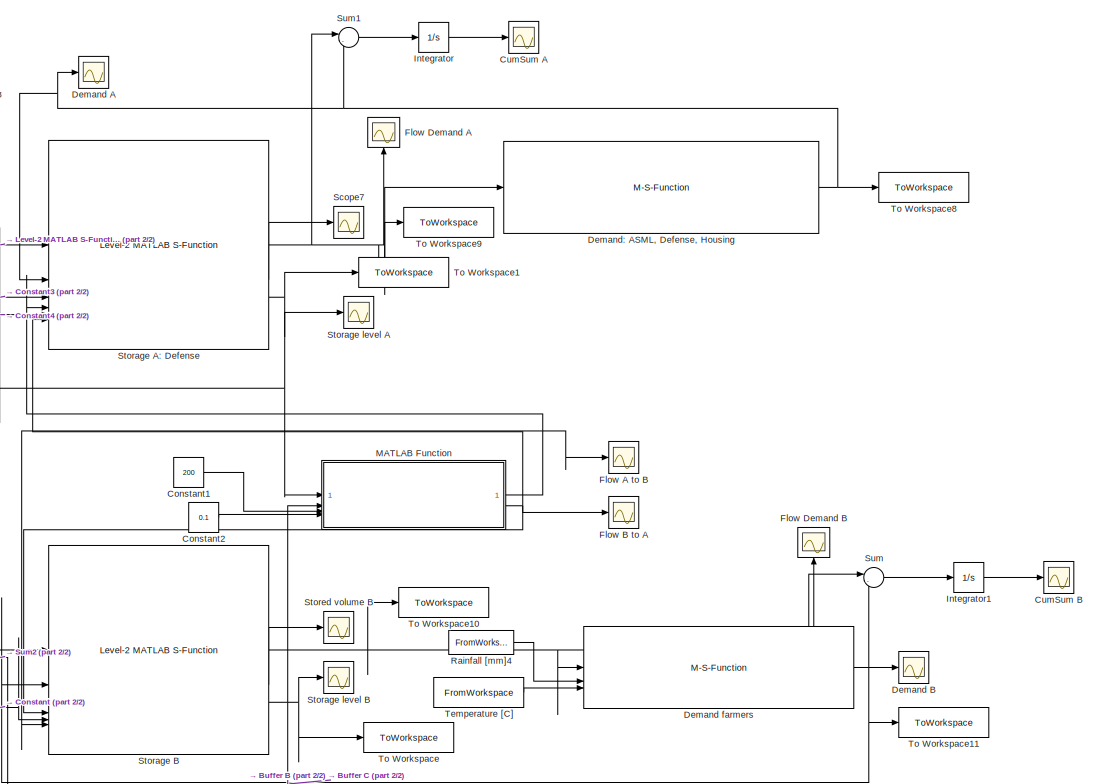
[diagram: root canvas - part 1/2, middle right region]
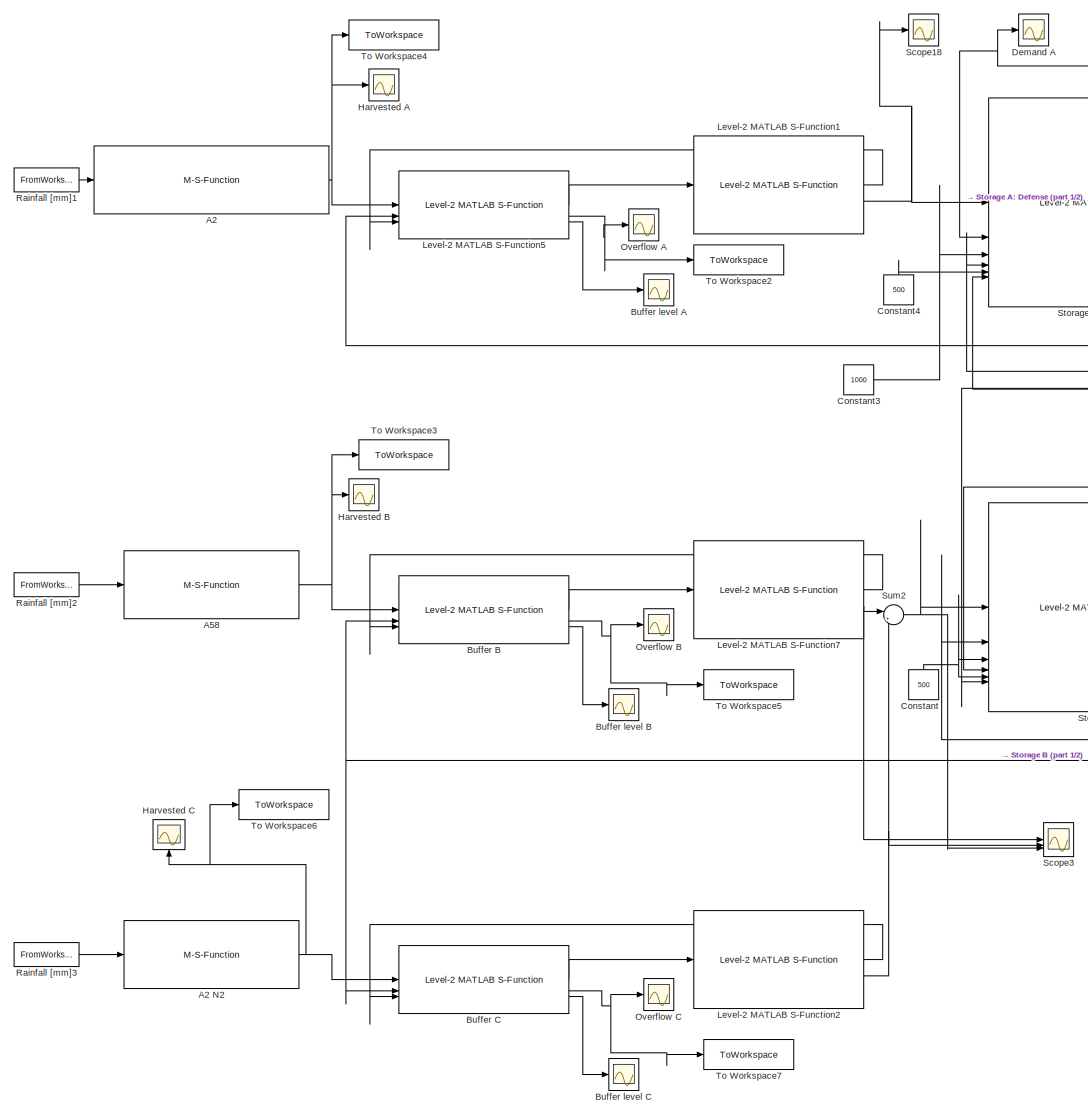
[diagram: root canvas - part 2/2, left side, full height]
MODEL slx_b76497cbbe05
KIND model
CONFIG AbsTol = auto
CONFIG EnableMultiTasking = off
CONFIG FixedStep = 0.05
CONFIG MaxStep = auto
CONFIG MinStep = auto
CONFIG RelTol = 1e-3
CONFIG SampleTimeConstraint = Unconstrained
CONFIG SolverName = ode1
CONFIG StartTime = 0.0
CONFIG StopTime = 365*24
BLOCK [M-S-Function] A2
  FunctionName = Harvester_s
  Parameters = Type_harvester, inflow_groundwater, Area
BLOCK [M-S-Function] A2 N2
  FunctionName = Harvester_s
  Parameters = Type_harvester, inflow_groundwater, Area
BLOCK [M-S-Function] A58
  FunctionName = Harvester_s
  Parameters = Type_harvester, inflow_groundwater, Area
BLOCK [Reference] Buffer B  REF=buffer_lib/Level-2 MATLAB
S-Function
  SourceBlock = buffer_lib/Level-2 MATLAB\nS-Function
BLOCK [Reference] Buffer C  REF=buffer_lib/Level-2 MATLAB
S-Function
  SourceBlock = buffer_lib/Level-2 MATLAB\nS-Function
BLOCK [Scope] Buffer level A
  Floating = off
  NumInputPorts = 1
  ScopeSpecificationString = Simulink.scopes.TimeScopeBlockCfg('CurrentConfiguration', extmgr.ConfigurationSet(extmgr.Configuration('Core','General UI',true),extmgr.Configuration('Core','Source UI',true),extmgr.Configuration('Sources','WiredSimulink',true,'DataLoggingVariableName','ScopeData2'),extmgr.Configuration('Visuals','Time Domain',true,'SerializedDisplays',{struct('MinYLimReal','-0.08','MaxYLimReal','0.72','YLabelReal...<+1458ch>
BLOCK [Scope] Buffer level B
  Floating = off
  NumInputPorts = 1
  ScopeSpecificationString = Simulink.scopes.TimeScopeBlockCfg('CurrentConfiguration', extmgr.ConfigurationSet(extmgr.Configuration('Core','General UI',true),extmgr.Configuration('Core','Source UI',true),extmgr.Configuration('Sources','WiredSimulink',true,'DataLoggingVariableName','ScopeData8'),extmgr.Configuration('Visuals','Time Domain',true,'SerializedDisplays',{struct('MinYLimReal','-0.08016','MaxYLimReal','0.72143','YLab...<+1486ch>
BLOCK [Scope] Buffer level C
  Floating = off
  NumInputPorts = 1
  ScopeSpecificationString = Simulink.scopes.TimeScopeBlockCfg('CurrentConfiguration', extmgr.ConfigurationSet(extmgr.Configuration('Core','General UI',true),extmgr.Configuration('Core','Source UI',true),extmgr.Configuration('Sources','WiredSimulink',true,'DataLoggingVariableName','ScopeData2'),extmgr.Configuration('Visuals','Time Domain',true,'SerializedDisplays',{struct('MinYLimReal','-0.09347','MaxYLimReal','0.84123','YLab...<+1486ch>
BLOCK [Constant] Constant
  NameLocation = right
  Value = 500
BLOCK [Constant] Constant1
  Value = 200
BLOCK [Constant] Constant2
  Value = 0.1
BLOCK [Constant] Constant3
  Value = 1000
BLOCK [Constant] Constant4
  NameLocation = right
  Value = 500
BLOCK [Scope] CumSum A
  Floating = off
  NumInputPorts = 1
  ScopeSpecificationString = Simulink.scopes.TimeScopeBlockCfg('CurrentConfiguration', extmgr.ConfigurationSet(extmgr.Configuration('Core','General UI',true),extmgr.Configuration('Core','Source UI',true),extmgr.Configuration('Sources','WiredSimulink',true,'DataLoggingVariableName','ScopeData1'),extmgr.Configuration('Visuals','Time Domain',true,'SerializedDisplays',{struct('MinYLimReal','-0.57078','MaxYLimReal','5.13699','YLab...<+1486ch>
BLOCK [Scope] CumSum B
  Floating = off
  NumInputPorts = 1
  ScopeSpecificationString = Simulink.scopes.TimeScopeBlockCfg('CurrentConfiguration', extmgr.ConfigurationSet(extmgr.Configuration('Core','General UI',true),extmgr.Configuration('Core','Source UI',true),extmgr.Configuration('Sources','WiredSimulink',true,'DataLoggingVariableName','ScopeData2'),extmgr.Configuration('Visuals','Time Domain',true,'SerializedDisplays',{struct('MinYLimReal','-16309.85454','MaxYLimReal','146788.690...<+1564ch>
BLOCK [Scope] Demand A
  Floating = off
  NumInputPorts = 1
  ScopeSpecificationString = Simulink.scopes.TimeScopeBlockCfg('CurrentConfiguration', extmgr.ConfigurationSet(extmgr.Configuration('Core','General UI',true),extmgr.Configuration('Core','Source UI',true),extmgr.Configuration('Sources','WiredSimulink',true,'DataLoggingVariableName','ScopeData1'),extmgr.Configuration('Visuals','Time Domain',true,'SerializedDisplays',{struct('MinYLimReal','81.3242','MaxYLimReal','101.3242','YLab...<+1519ch>
BLOCK [Scope] Demand B
  Floating = off
  NumInputPorts = 1
  ScopeSpecificationString = Simulink.scopes.TimeScopeBlockCfg('CurrentConfiguration', extmgr.ConfigurationSet(extmgr.Configuration('Core','General UI',true),extmgr.Configuration('Core','Source UI',true),extmgr.Configuration('Sources','WiredSimulink',true,'DataLoggingVariableName','ScopeData2'),extmgr.Configuration('Visuals','Time Domain',true,'SerializedDisplays',{struct('MinYLimReal','-15.825','MaxYLimReal','142.425','YLabe...<+1543ch>
BLOCK [M-S-Function] Demand farmers
  FunctionName = Demand_s
  Parameters = Type_demand, Constant_demand, Crop_type, Area
BLOCK [M-S-Function] Demand: ASML, Defense, Housing
  FunctionName = Demand_s
  Parameters = Type_demand, Constant_demand, Crop_type, Area
BLOCK [Scope] Flow A to B
  Floating = off
  NumInputPorts = 1
  ScopeSpecificationString = Simulink.scopes.TimeScopeBlockCfg('CurrentConfiguration', extmgr.ConfigurationSet(extmgr.Configuration('Core','General UI',true),extmgr.Configuration('Core','Source UI',true),extmgr.Configuration('Sources','WiredSimulink',true,'DataLoggingVariableName','ScopeData2'),extmgr.Configuration('Visuals','Time Domain',true,'SerializedDisplays',{struct('MinYLimReal','-25.00000','MaxYLimReal','225.00000','Y...<+1567ch>
BLOCK [Scope] Flow B to A
  Floating = off
  NumInputPorts = 1
  ScopeSpecificationString = Simulink.scopes.TimeScopeBlockCfg('CurrentConfiguration', extmgr.ConfigurationSet(extmgr.Configuration('Core','General UI',true),extmgr.Configuration('Core','Source UI',true),extmgr.Configuration('Sources','WiredSimulink',true,'DataLoggingVariableName','ScopeData1'),extmgr.Configuration('Visuals','Time Domain',true,'SerializedDisplays',{struct('MinYLimReal','-10.29767','MaxYLimReal','92.679','YLab...<+1555ch>
BLOCK [Scope] Flow Demand A
  Floating = off
  NameLocation = right
  NumInputPorts = 1
  ScopeSpecificationString = Simulink.scopes.TimeScopeBlockCfg('CurrentConfiguration', extmgr.ConfigurationSet(extmgr.Configuration('Core','General UI',true),extmgr.Configuration('Core','Source UI',true),extmgr.Configuration('Sources','WiredSimulink',true,'DataLoggingVariableName','ScopeData4'),extmgr.Configuration('Visuals','Time Domain',true,'SerializedDisplays',{struct('MinYLimReal','-8.56164','MaxYLimReal','77.05479','YLa...<+1508ch>
BLOCK [Scope] Flow Demand B
  Floating = off
  NameLocation = right
  NumInputPorts = 1
  ScopeSpecificationString = Simulink.scopes.TimeScopeBlockCfg('CurrentConfiguration', extmgr.ConfigurationSet(extmgr.Configuration('Core','General UI',true),extmgr.Configuration('Core','Source UI',true),extmgr.Configuration('Sources','WiredSimulink',true,'DataLoggingVariableName','ScopeData1'),extmgr.Configuration('Visuals','Time Domain',true,'SerializedDisplays',{struct('MinYLimReal','-32.86937','MaxYLimReal','295.82437','Y...<+1552ch>
BLOCK [Scope] Harvested A
  Floating = off
  NumInputPorts = 1
  ScopeSpecificationString = Simulink.scopes.TimeScopeBlockCfg('CurrentConfiguration', extmgr.ConfigurationSet(extmgr.Configuration('Core','General UI',true),extmgr.Configuration('Core','Source UI',true),extmgr.Configuration('Sources','WiredSimulink',true,'DataLoggingVariableName','ScopeData3'),extmgr.Configuration('Visuals','Time Domain',true,'SerializedDisplays',{struct('MinYLimReal','-21.8','MaxYLimReal','1106.2','YLabelRe...<+1473ch>
BLOCK [Scope] Harvested B
  Floating = off
  NumInputPorts = 1
  ScopeSpecificationString = Simulink.scopes.TimeScopeBlockCfg('CurrentConfiguration', extmgr.ConfigurationSet(extmgr.Configuration('Core','General UI',true),extmgr.Configuration('Core','Source UI',true),extmgr.Configuration('Sources','WiredSimulink',true,'DataLoggingVariableName','ScopeData9'),extmgr.Configuration('Visuals','Time Domain',true,'SerializedDisplays',{struct('MinYLimReal','-2.86875','MaxYLimReal','25.81875','YLa...<+1486ch>
BLOCK [Scope] Harvested C
  Floating = off
  NameLocation = right
  NumInputPorts = 1
  ScopeSpecificationString = Simulink.scopes.TimeScopeBlockCfg('CurrentConfiguration', extmgr.ConfigurationSet(extmgr.Configuration('Core','General UI',true),extmgr.Configuration('Core','Source UI',true),extmgr.Configuration('Sources','WiredSimulink',true,'DataLoggingVariableName','ScopeData3'),extmgr.Configuration('Visuals','Time Domain',true,'SerializedDisplays',{struct('MinYLimReal','-2.86875','MaxYLimReal','25.81875','YLa...<+1486ch>
BLOCK [Integrator] Integrator
BLOCK [Integrator] Integrator1
BLOCK [Reference] Level-2 MATLAB S-Function1  REF=filter_lib/Level-2 MATLAB
S-Function
  SourceBlock = filter_lib/Level-2 MATLAB\nS-Function
BLOCK [Reference] Level-2 MATLAB S-Function2  REF=filter_lib/Level-2 MATLAB
S-Function
  SourceBlock = filter_lib/Level-2 MATLAB\nS-Function
BLOCK [Reference] Level-2 MATLAB S-Function5  REF=buffer_lib/Level-2 MATLAB
S-Function
  SourceBlock = buffer_lib/Level-2 MATLAB\nS-Function
BLOCK [Reference] Level-2 MATLAB S-Function7  REF=filter_lib/Level-2 MATLAB
S-Function
  SourceBlock = filter_lib/Level-2 MATLAB\nS-Function
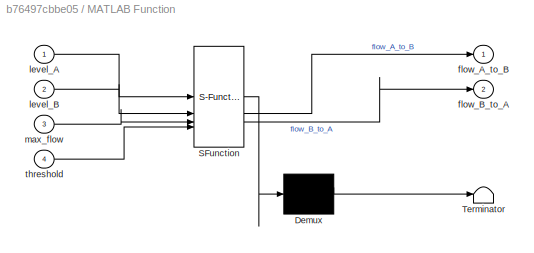
BLOCK [SubSystem] MATLAB Function
  ErrorFcn = Stateflow.Translate.translate
  PermitHierarchicalResolution = ExplicitOnly
  SFBlockType = MATLAB Function
  TreatAsAtomicUnit = on
BLOCK [Demux] MATLAB Function/ Demux 
  Outputs = 1
BLOCK [S-Function] MATLAB Function/ SFunction 
  EnableBusSupport = on
  FunctionName = sf_sfun
  PortCounts = [4 3]
  SFcnIsStateOwnerBlock = off
  SFunctionDeploymentMode = off
  Tag = Stateflow S-Function 2
BLOCK [Terminator] MATLAB Function/ Terminator 
BLOCK [Outport] MATLAB Function/flow_A_to_B
BLOCK [Outport] MATLAB Function/flow_B_to_A
  Port = 2
BLOCK [Inport] MATLAB Function/level_A
BLOCK [Inport] MATLAB Function/level_B
  Port = 2
BLOCK [Inport] MATLAB Function/max_flow
  Port = 3
BLOCK [Inport] MATLAB Function/threshold
  Port = 4
BLOCK [Scope] Overflow A
  Floating = off
  NumInputPorts = 1
  ScopeSpecificationString = Simulink.scopes.TimeScopeBlockCfg('CurrentConfiguration', extmgr.ConfigurationSet(extmgr.Configuration('Core','General UI',true),extmgr.Configuration('Core','Source UI',true),extmgr.Configuration('Sources','WiredSimulink',true,'DataLoggingVariableName','ScopeData7'),extmgr.Configuration('Visuals','Time Domain',true,'SerializedDisplays',{struct('MinYLimReal','-1.00000','MaxYLimReal','1.00000','YLab...<+1486ch>
BLOCK [Scope] Overflow B
  Floating = off
  NumInputPorts = 1
  ScopeSpecificationString = Simulink.scopes.TimeScopeBlockCfg('CurrentConfiguration', extmgr.ConfigurationSet(extmgr.Configuration('Core','General UI',true),extmgr.Configuration('Core','Source UI',true),extmgr.Configuration('Sources','WiredSimulink',true,'DataLoggingVariableName','ScopeData10'),extmgr.Configuration('Visuals','Time Domain',true,'SerializedDisplays',{struct('MinYLimReal','-1.00000','MaxYLimReal','1.00000','YLa...<+1488ch>
BLOCK [Scope] Overflow C
  Floating = off
  NumInputPorts = 1
  ScopeSpecificationString = Simulink.scopes.TimeScopeBlockCfg('CurrentConfiguration', extmgr.ConfigurationSet(extmgr.Configuration('Core','General UI',true),extmgr.Configuration('Core','Source UI',true),extmgr.Configuration('Sources','WiredSimulink',true,'DataLoggingVariableName','ScopeData1'),extmgr.Configuration('Visuals','Time Domain',true,'SerializedDisplays',{struct('MinYLimReal','-1.00000','MaxYLimReal','1.00000','YLab...<+1487ch>
BLOCK [FromWorkspace] Rainfall [mm]1
  OutDataTypeStr = double
  SampleTime = 1
  VariableName = rain_data
BLOCK [FromWorkspace] Rainfall [mm]2
  OutDataTypeStr = double
  SampleTime = 1
  VariableName = rain_data
BLOCK [FromWorkspace] Rainfall [mm]3
  OutDataTypeStr = double
  SampleTime = 1
  VariableName = rain_data
BLOCK [FromWorkspace] Rainfall [mm]4
  OutDataTypeStr = double
  SampleTime = 1
  VariableName = rain_data
BLOCK [Scope] Scope18
  Floating = off
  NumInputPorts = 1
  ScopeSpecificationString = Simulink.scopes.TimeScopeBlockCfg('CurrentConfiguration', extmgr.ConfigurationSet(extmgr.Configuration('Core','General UI',true),extmgr.Configuration('Core','Source UI',true),extmgr.Configuration('Sources','WiredSimulink',true,'DataLoggingVariableName','ScopeData1'),extmgr.Configuration('Visuals','Time Domain',true,'SerializedDisplays',{struct('MinYLimReal','-16.00007','MaxYLimReal','144.00065','Y...<+1520ch>
BLOCK [Scope] Scope3
  Floating = off
  NumInputPorts = 3
  ScopeSpecificationString = Simulink.scopes.TimeScopeBlockCfg('CurrentConfiguration', extmgr.ConfigurationSet(extmgr.Configuration('Core','General UI',true),extmgr.Configuration('Core','Source UI',true),extmgr.Configuration('Sources','WiredSimulink',true,'DataLoggingVariableName','ScopeData4'),extmgr.Configuration('Visuals','Time Domain',true,'SerializedDisplays',{struct('MinYLimReal','-21.1046','MaxYLimReal','189.90639','YL...<+1674ch>
BLOCK [Scope] Scope7
  Floating = off
  NumInputPorts = 1
  ScopeSpecificationString = Simulink.scopes.TimeScopeBlockCfg('CurrentConfiguration', extmgr.ConfigurationSet(extmgr.Configuration('Core','General UI',true),extmgr.Configuration('Core','Source UI',true),extmgr.Configuration('Sources','WiredSimulink',true,'DataLoggingVariableName','ScopeData5'),extmgr.Configuration('Visuals','Time Domain',true,'SerializedDisplays',{struct('MinYLimReal','-1406.25','MaxYLimReal','12656.25','YLa...<+1529ch>
BLOCK [Reference] Storage A: Defense  REF=storage_lib/Level-2 MATLAB
S-Function
  SourceBlock = storage_lib/Level-2 MATLAB\nS-Function
BLOCK [Reference] Storage B  REF=storage_lib/Level-2 MATLAB
S-Function
  SourceBlock = storage_lib/Level-2 MATLAB\nS-Function
BLOCK [Scope] Storage level A
  Floating = off
  NumInputPorts = 1
  ScopeSpecificationString = Simulink.scopes.TimeScopeBlockCfg('CurrentConfiguration', extmgr.ConfigurationSet(extmgr.Configuration('Core','General UI',true),extmgr.Configuration('Core','Source UI',true),extmgr.Configuration('Sources','WiredSimulink',true,'DataLoggingVariableName','ScopeData6'),extmgr.Configuration('Visuals','Time Domain',true,'SerializedDisplays',{struct('MinYLimReal','-0.06876','MaxYLimReal','1.11875','YLab...<+1576ch>
BLOCK [Scope] Storage level B
  Floating = off
  NumInputPorts = 1
  ScopeSpecificationString = Simulink.scopes.TimeScopeBlockCfg('CurrentConfiguration', extmgr.ConfigurationSet(extmgr.Configuration('Core','General UI',true),extmgr.Configuration('Core','Source UI',true),extmgr.Configuration('Sources','WiredSimulink',true,'DataLoggingVariableName','ScopeData11'),extmgr.Configuration('Visuals','Time Domain',true,'SerializedDisplays',{struct('MinYLimReal','-0.125','MaxYLimReal','1.125','YLabelR...<+1504ch>
BLOCK [Scope] Stored volume B
  Floating = off
  NumInputPorts = 1
  ScopeSpecificationString = Simulink.scopes.TimeScopeBlockCfg('CurrentConfiguration', extmgr.ConfigurationSet(extmgr.Configuration('Core','General UI',true),extmgr.Configuration('Core','Source UI',true),extmgr.Configuration('Sources','WiredSimulink',true,'DataLoggingVariableName','ScopeData2'),extmgr.Configuration('Visuals','Time Domain',true,'SerializedDisplays',{struct('MinYLimReal','-779.69924','MaxYLimReal','15640.79314'...<+1562ch>
BLOCK [Sum] Sum
  Inputs = |-+
BLOCK [Sum] Sum1
  Inputs = |-+
BLOCK [Sum] Sum2
  Inputs = |++
BLOCK [FromWorkspace] Temperature [C]
  OutDataTypeStr = double
  SampleTime = 1
  VariableName = temperature_data
BLOCK [ToWorkspace] To Workspace
  FixptAsFi = on
  MaxDataPoints = inf
  SampleTime = 1
  VariableName = Storage_level_B
BLOCK [ToWorkspace] To Workspace1
  FixptAsFi = on
  MaxDataPoints = inf
  SampleTime = 1
  VariableName = Storage_level_A
BLOCK [ToWorkspace] To Workspace10
  FixptAsFi = on
  MaxDataPoints = inf
  SampleTime = 1
  VariableName = Flow_demand_B
BLOCK [ToWorkspace] To Workspace11
  FixptAsFi = on
  MaxDataPoints = inf
  SampleTime = 1
  VariableName = Demand_B
BLOCK [ToWorkspace] To Workspace2
  FixptAsFi = on
  MaxDataPoints = inf
  SampleTime = 1
  VariableName = Overflow_A
BLOCK [ToWorkspace] To Workspace3
  FixptAsFi = on
  MaxDataPoints = inf
  SampleTime = 1
  VariableName = Harvested_B
BLOCK [ToWorkspace] To Workspace4
  FixptAsFi = on
  MaxDataPoints = inf
  SampleTime = 1
  VariableName = Harvested_A
BLOCK [ToWorkspace] To Workspace5
  FixptAsFi = on
  MaxDataPoints = inf
  SampleTime = 1
  VariableName = Overflow_B
BLOCK [ToWorkspace] To Workspace6
  FixptAsFi = on
  MaxDataPoints = inf
  SampleTime = 1
  VariableName = Harvested_C
BLOCK [ToWorkspace] To Workspace7
  FixptAsFi = on
  MaxDataPoints = inf
  SampleTime = 1
  VariableName = Overflow_C
BLOCK [ToWorkspace] To Workspace8
  FixptAsFi = on
  MaxDataPoints = inf
  SampleTime = 1
  VariableName = Demand_A
BLOCK [ToWorkspace] To Workspace9
  FixptAsFi = on
  MaxDataPoints = inf
  SampleTime = 1
  VariableName = Flow_demand_A
NET A2 N2:1 -> Buffer C:1, Harvested C:1, To Workspace6:1
NET A2:1 -> Harvested A:1, Level-2 MATLAB S-Function5:1, To Workspace4:1
NET A58:1 -> Buffer B:1, Harvested B:1, To Workspace3:1
LINE Buffer B:1 -> Level-2 MATLAB S-Function7:1
NET Buffer B:2 -> Overflow B:1, To Workspace5:1
LINE Buffer B:3 -> Buffer level B:1
LINE Buffer C:1 -> Level-2 MATLAB S-Function2:1
NET Buffer C:2 -> Overflow C:1, To Workspace7:1
LINE Buffer C:3 -> Buffer level C:1
LINE Constant1:1 -> MATLAB Function:3
LINE Constant2:1 -> MATLAB Function:4
LINE Constant3:1 -> Storage A: Defense:3
LINE Constant4:1 -> Storage A: Defense:5
NET Constant:1 -> Storage B:3, Storage B:5
NET Demand farmers:1 -> Demand B:1, Storage B:2, Sum:2, To Workspace11:1
NET Demand: ASML, Defense, Housing:1 -> Demand A:1, Storage A: Defense:2, Sum1:2, To Workspace8:1
LINE Integrator1:1 -> CumSum B:1
LINE Integrator:1 -> CumSum A:1
LINE Level-2 MATLAB S-Function1:1 -> Level-2 MATLAB S-Function5:3
NET Level-2 MATLAB S-Function1:2 -> Scope18:1, Storage A: Defense:1
LINE Level-2 MATLAB S-Function2:1 -> Buffer C:3
NET Level-2 MATLAB S-Function2:2 -> Scope3:2, Sum2:2
LINE Level-2 MATLAB S-Function5:1 -> Level-2 MATLAB S-Function1:1
NET Level-2 MATLAB S-Function5:2 -> Overflow A:1, To Workspace2:1
LINE Level-2 MATLAB S-Function5:3 -> Buffer level A:1
LINE Level-2 MATLAB S-Function7:1 -> Buffer B:3
NET Level-2 MATLAB S-Function7:2 -> Scope3:1, Sum2:1
NET MATLAB Function:1 -> Flow A to B:1, Storage A: Defense:4, Storage B:6
NET MATLAB Function:2 -> Flow B to A:1, Storage A: Defense:6, Storage B:4
LINE Rainfall [mm]1:1 -> A2:1
LINE Rainfall [mm]2:1 -> A58:1
LINE Rainfall [mm]3:1 -> A2 N2:1
LINE Rainfall [mm]4:1 -> Demand farmers:2
NET Storage A: Defense:1 -> Demand: ASML, Defense, Housing:1, Flow Demand A:1, Sum1:1, To Workspace9:1
LINE Storage A: Defense:2 -> Scope7:1
NET Storage A: Defense:3 -> Level-2 MATLAB S-Function5:2, MATLAB Function:1, Storage level A:1, To Workspace1:1
NET Storage B:1 -> Demand farmers:1, Flow Demand B:1, Sum:1, To Workspace10:1
LINE Storage B:2 -> Stored volume B:1
NET Storage B:3 -> Buffer B:2, Buffer C:2, MATLAB Function:2, Storage level B:1, To Workspace:1
LINE Sum1:1 -> Integrator:1
NET Sum2:1 -> Scope3:3, Storage B:1
LINE Sum:1 -> Integrator1:1
LINE Temperature [C]:1 -> Demand farmers:3
note: NET lines group one-source signal fan-out (src -> all destinations, sorted); 1:1 wires keep LINE
CHART MATLAB Function states=1 transitions=1
  STATE_LABEL 'eML_blk_kernel()'
  STATE_LABEL 'SCRIPT:\nfunction [flow_A_to_B, flow_B_to_A] = real_time_control(level_A, level_B, max_flow, threshold)\n\nthresholdB = 0.1;\nflow_A_to_B = 0;\nflow_B_to_A = 0;\ngain = 10;\n\n% Flow from A to B\nif (level_A > level_B) && (level_A > threshold)\n    flow_A_to_B = min(gain*min((level_A - level_B), 1) * max_flow,max_flow);\n    %flow_A_to_B = max_flow;\n\n% Flow from B to A\nelseif (level_B > level_A) && (level_B ...<+96ch>'
CHART  states=0 transitions=0
